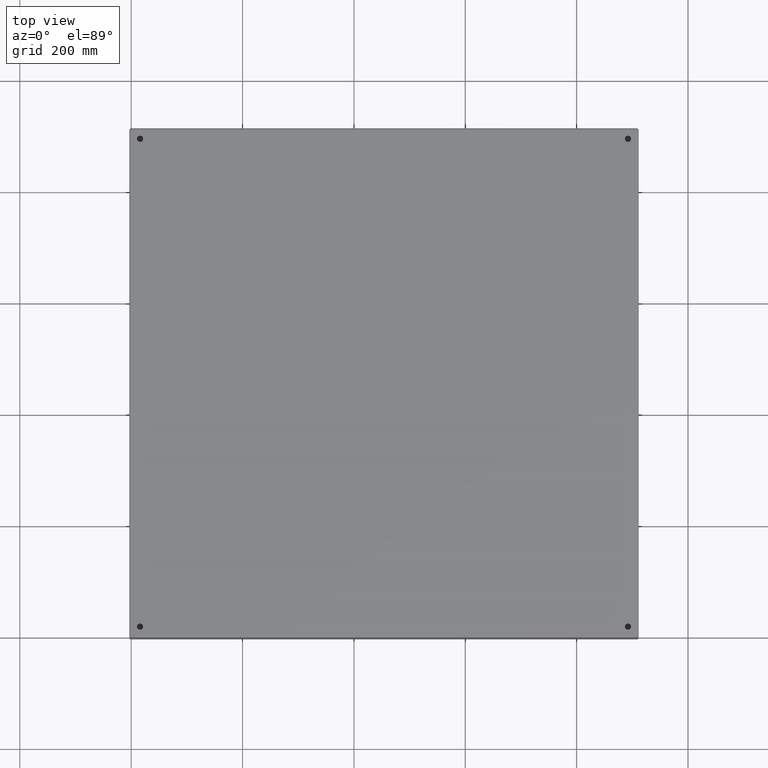
[diagram: clean part render]
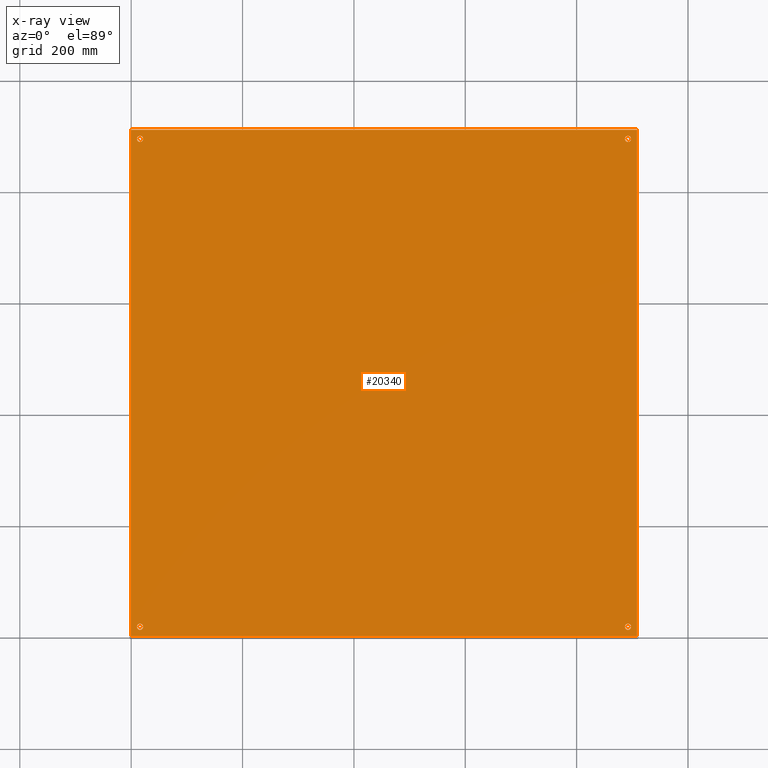
[diagram: x-ray — body ghosted, one internal face saturated and labeled with its STEP entity id]
A machine part, top view, then the same camera in x-ray: the body is ghosted and one INTERNAL B-rep face — a face not visible from any outside direction — is saturated and labeled: STEP entity #20340.
In plain terms, the highlighted planar face has unit normal (0, -0, -1).
Its self-contained STEP definition (entity closure, byte-faithful):
#15479=CARTESIAN_POINT('',(0.531249999999996,0.750000000000002,0.074000000000000));
#15480=VERTEX_POINT('',#15479);
#15481=CARTESIAN_POINT('',(0.749999999999996,0.750000000000002,0.074000000000000));
#15482=DIRECTION('',(0.0,0.0,-1.0));
#15483=DIRECTION('',(1.0,0.0,0.0));
#15484=AXIS2_PLACEMENT_3D('',#15481,#15482,#15483);
#15485=CIRCLE('',#15484,0.218750000000000);
#15486=EDGE_CURVE('',#15480,#15480,#15485,.T.);
#15507=CARTESIAN_POINT('',(35.031249999999972,0.750000000000002,0.074000000000000));
#15508=VERTEX_POINT('',#15507);
#15509=CARTESIAN_POINT('',(35.249999999999972,0.750000000000002,0.074000000000000));
#15510=DIRECTION('',(0.0,0.0,-1.0));
#15511=DIRECTION('',(1.0,0.0,0.0));
#15512=AXIS2_PLACEMENT_3D('',#15509,#15510,#15511);
#15513=CIRCLE('',#15512,0.218750000000000);
#15514=EDGE_CURVE('',#15508,#15508,#15513,.T.);
#15535=CARTESIAN_POINT('',(0.531249999999997,35.250000000000007,0.074000000000000));
#15536=VERTEX_POINT('',#15535);
#15537=CARTESIAN_POINT('',(0.749999999999997,35.250000000000007,0.074000000000000));
#15538=DIRECTION('',(0.0,0.0,-1.0));
#15539=DIRECTION('',(1.0,0.0,0.0));
#15540=AXIS2_PLACEMENT_3D('',#15537,#15538,#15539);
#15541=CIRCLE('',#15540,0.218750000000000);
#15542=EDGE_CURVE('',#15536,#15536,#15541,.T.);
#15563=CARTESIAN_POINT('',(35.031249999999972,35.250000000000007,0.074000000000000));
#15564=VERTEX_POINT('',#15563);
#15565=CARTESIAN_POINT('',(35.249999999999972,35.250000000000007,0.074000000000000));
#15566=DIRECTION('',(0.0,0.0,-1.0));
#15567=DIRECTION('',(1.0,0.0,0.0));
#15568=AXIS2_PLACEMENT_3D('',#15565,#15566,#15567);
#15569=CIRCLE('',#15568,0.218750000000000);
#15570=EDGE_CURVE('',#15564,#15564,#15569,.T.);
#19078=CARTESIAN_POINT('',(35.894750000000002,35.882766839324368,0.074000000000000));
#19079=VERTEX_POINT('',#19078);
#19089=CARTESIAN_POINT('',(35.894750000000002,0.117233160675640,0.074000000000000));
#19090=VERTEX_POINT('',#19089);
#19091=CARTESIAN_POINT('',(35.894750000000002,0.117233160675642,0.074000000000000));
#19092=DIRECTION('',(0.0,1.0,0.0));
#19093=VECTOR('',#19092,35.765533678648723);
#19094=LINE('',#19091,#19093);
#19095=EDGE_CURVE('',#19090,#19079,#19094,.T.);
#19391=CARTESIAN_POINT('',(0.117233160675629,35.894750000000002,0.074000000000006));
#19392=VERTEX_POINT('',#19391);
#19402=CARTESIAN_POINT('',(35.882766839324368,35.894750000000002,0.074000000000000));
#19403=VERTEX_POINT('',#19402);
#19404=CARTESIAN_POINT('',(35.882766839324368,35.894750000000002,0.074000000000000));
#19405=DIRECTION('',(-1.0,0.0,0.0));
#19406=VECTOR('',#19405,35.765533678648737);
#19407=LINE('',#19404,#19406);
#19408=EDGE_CURVE('',#19403,#19392,#19407,.T.);
#19708=CARTESIAN_POINT('',(0.105250000000007,0.117233160675642,0.074000000000000));
#19709=VERTEX_POINT('',#19708);
#19719=CARTESIAN_POINT('',(0.105249999999996,35.882766839324361,0.074000000000000));
#19720=VERTEX_POINT('',#19719);
#19721=CARTESIAN_POINT('',(0.105249999999996,35.882766839324361,0.074000000000000));
#19722=DIRECTION('',(0.0,-1.0,0.0));
#19723=VECTOR('',#19722,35.765533678648723);
#19724=LINE('',#19721,#19723);
#19725=EDGE_CURVE('',#19720,#19709,#19724,.T.);
#19973=CARTESIAN_POINT('',(35.882766839324361,0.105250000000001,0.074000000000000));
#19974=VERTEX_POINT('',#19973);
#19984=CARTESIAN_POINT('',(0.117233160675647,0.105250000000001,0.074000000000000));
#19985=VERTEX_POINT('',#19984);
#19986=CARTESIAN_POINT('',(0.117233160675646,0.105250000000001,0.074000000000000));
#19987=DIRECTION('',(1.0,0.0,0.0));
#19988=VECTOR('',#19987,35.765533678648715);
#19989=LINE('',#19986,#19988);
#19990=EDGE_CURVE('',#19985,#19974,#19989,.T.);
#20277=CARTESIAN_POINT('',(0.062108078884585,0.062108078884585,0.074000000000000));
#20278=DIRECTION('',(0.0,0.0,-1.0));
#20279=DIRECTION('',(1.0,0.0,0.0));
#20280=AXIS2_PLACEMENT_3D('',#20277,#20278,#20279);
#20281=CIRCLE('',#20280,0.070000000000000);
#20282=EDGE_CURVE('',#19709,#19985,#20281,.T.);
#20295=CARTESIAN_POINT('',(17.999999999999996,18.000000000000011,0.074000000000000));
#20296=DIRECTION('',(0.0,0.0,1.0));
#20297=DIRECTION('',(1.0,0.0,0.0));
#20298=AXIS2_PLACEMENT_3D('',#20295,#20296,#20297);
#20299=PLANE('',#20298);
#20300=ORIENTED_EDGE('',*,*,#19990,.T.);
#20301=CARTESIAN_POINT('',(35.937891921115423,0.062108078884581,0.074000000000000));
#20302=DIRECTION('',(0.0,0.0,-1.0));
#20303=DIRECTION('',(1.0,0.0,0.0));
#20304=AXIS2_PLACEMENT_3D('',#20301,#20302,#20303);
#20305=CIRCLE('',#20304,0.070000000000000);
#20306=EDGE_CURVE('',#19974,#19090,#20305,.T.);
#20307=ORIENTED_EDGE('',*,*,#20306,.T.);
#20308=ORIENTED_EDGE('',*,*,#19095,.T.);
#20309=CARTESIAN_POINT('',(35.937891921115423,35.937891921115430,0.074000000000000));
#20310=DIRECTION('',(0.0,0.0,-1.0));
#20311=DIRECTION('',(1.0,0.0,0.0));
#20312=AXIS2_PLACEMENT_3D('',#20309,#20310,#20311);
#20313=CIRCLE('',#20312,0.070000000000000);
#20314=EDGE_CURVE('',#19079,#19403,#20313,.T.);
#20315=ORIENTED_EDGE('',*,*,#20314,.T.);
#20316=ORIENTED_EDGE('',*,*,#19408,.T.);
#20317=CARTESIAN_POINT('',(0.062108078884570,35.937891921115423,0.074000000000000));
#20318=DIRECTION('',(0.0,0.0,-1.0));
#20319=DIRECTION('',(1.0,0.0,0.0));
#20320=AXIS2_PLACEMENT_3D('',#20317,#20318,#20319);
#20321=CIRCLE('',#20320,0.070000000000000);
#20322=EDGE_CURVE('',#19392,#19720,#20321,.T.);
#20323=ORIENTED_EDGE('',*,*,#20322,.T.);
#20324=ORIENTED_EDGE('',*,*,#19725,.T.);
#20325=ORIENTED_EDGE('',*,*,#20282,.T.);
#20326=EDGE_LOOP('',(#20300,#20307,#20308,#20315,#20316,#20323,#20324,#20325));
#20327=FACE_OUTER_BOUND('',#20326,.T.);
#20328=ORIENTED_EDGE('',*,*,#15486,.T.);
#20329=EDGE_LOOP('',(#20328));
#20330=FACE_BOUND('',#20329,.T.);
#20331=ORIENTED_EDGE('',*,*,#15514,.T.);
#20332=EDGE_LOOP('',(#20331));
#20333=FACE_BOUND('',#20332,.T.);
#20334=ORIENTED_EDGE('',*,*,#15542,.T.);
#20335=EDGE_LOOP('',(#20334));
#20336=FACE_BOUND('',#20335,.T.);
#20337=ORIENTED_EDGE('',*,*,#15570,.T.);
#20338=EDGE_LOOP('',(#20337));
#20339=FACE_BOUND('',#20338,.T.);
#20340=ADVANCED_FACE('',(#20327,#20330,#20333,#20336,#20339),#20299,.T.);